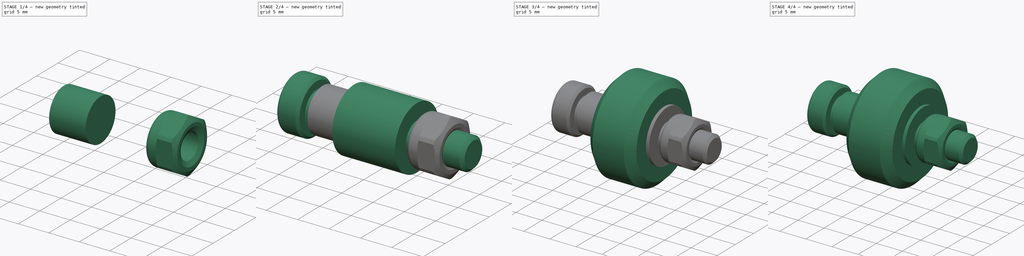
[diagram: build sequence overview — one tinted view per stage of 4, left to right]
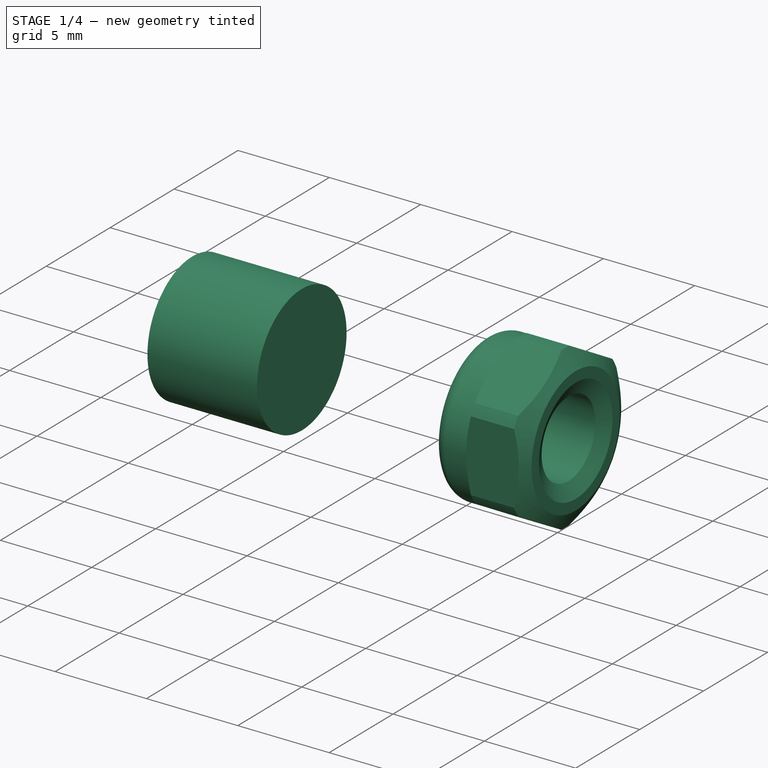
[diagram: stage 1 of 4 — iso view after this stage's code; geometry added in this stage tinted green]
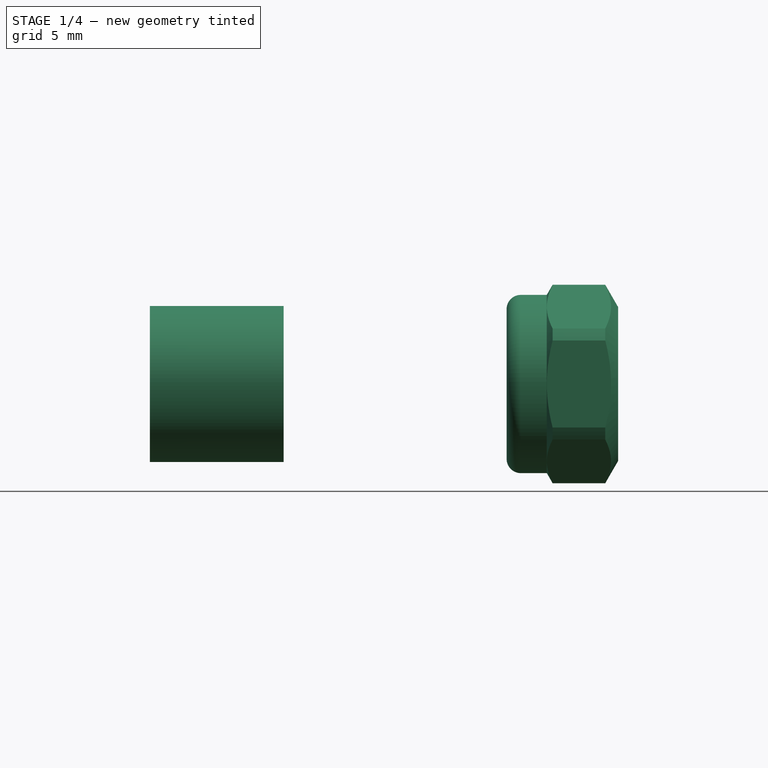
[diagram: stage 1 of 4 — front view after this stage's code; geometry added in this stage tinted green]
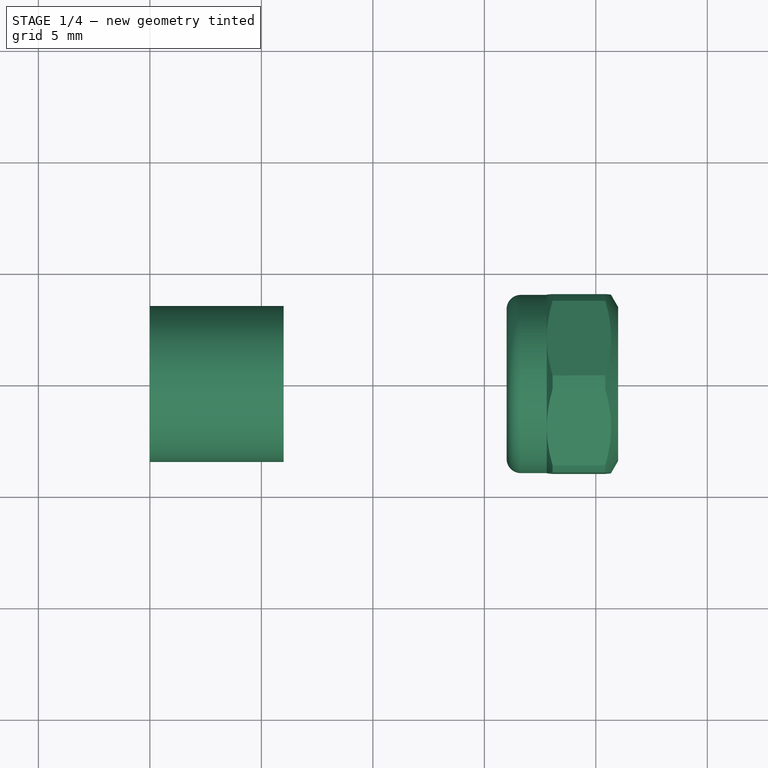
[diagram: stage 1 of 4 — top view after this stage's code; geometry added in this stage tinted green]
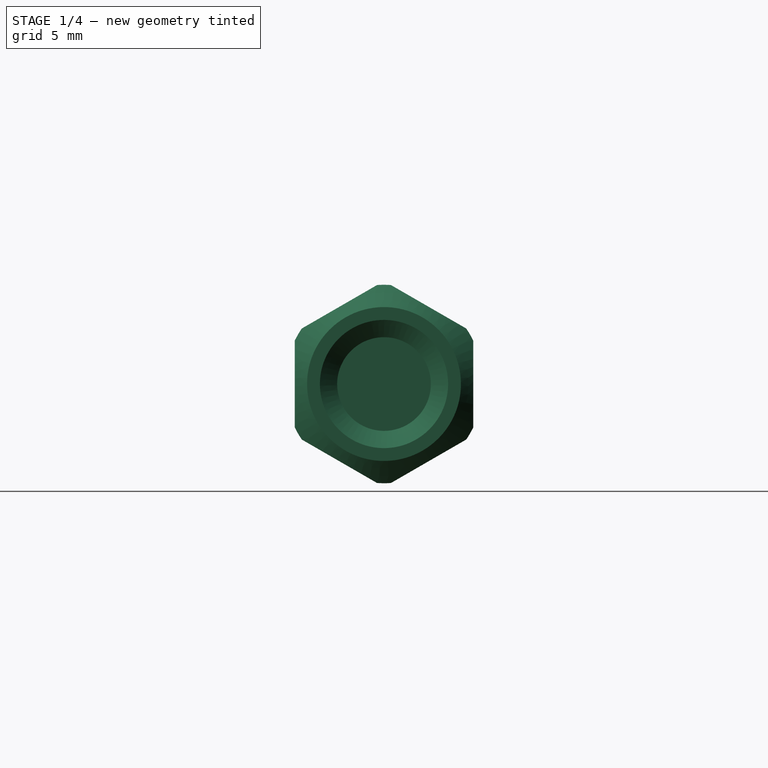
[diagram: stage 1 of 4 — right view after this stage's code; geometry added in this stage tinted green]
FCSTD DOCUMENT  (FreeCAD 0.19R)
Label: Rollen
License: All rights reserved
LicenseURL: http://en.wikipedia.org/wiki/All_rights_reserved
objects: Part::Cylinder×4, Part::Cut×2, Part::FeaturePython×2, Part::Feature×2, Sketcher::SketchObject×1, Part::Revolution×1, Part::MultiFuse×1, App::Part×1
note: 13 computed .brp shape members not serialized (recipe doc carries the construction recipe); baked Part::Feature solids carry a one-line shape summary decoded from their .brp

FEATURE [Part::Feature] Cut002  label="Tire"
  Placement = pos=(1,0,0) rot=(0,0,1;0rad)
  shape: bbox 8.8 x 18.03 x 18.03 mm, 6 faces (baked)
FEATURE [Part::Feature] Cut001001  label="Bearing"
  Placement = pos=(1,0,0) rot=(0,0,1;0rad)
  shape: bbox 10 x 10 x 10 mm, 4 faces (baked)
FEATURE [Part::Cylinder] Cylinder004  label="Spacer"
  Angle = 360
  AttacherType = Attacher::AttachEngine3D
  Height = 6
  Placement = pos=(-10,0,0) rot=(0,1,0;1.5708rad)
  Radius = 3.5
FEATURE [Part::FeaturePython] Nut  label="M5-Nut"  # Fasteners workbench fastener (typed FeaturePython)
  Placement = pos=(11,0,0) rot=(0,-1,0;1.5708rad)
  diameter = 3
  invert = false
  matchOuter = false
  offset = 0
  thread = false
  type = 5
FEATURE [App::Part] Part  label="Rollensatz_Aliexpress4000394459605"
  Group = -> [Screw001,Cut002,Cut001001,Cylinder004,Nut]
  Origin = -> Origin
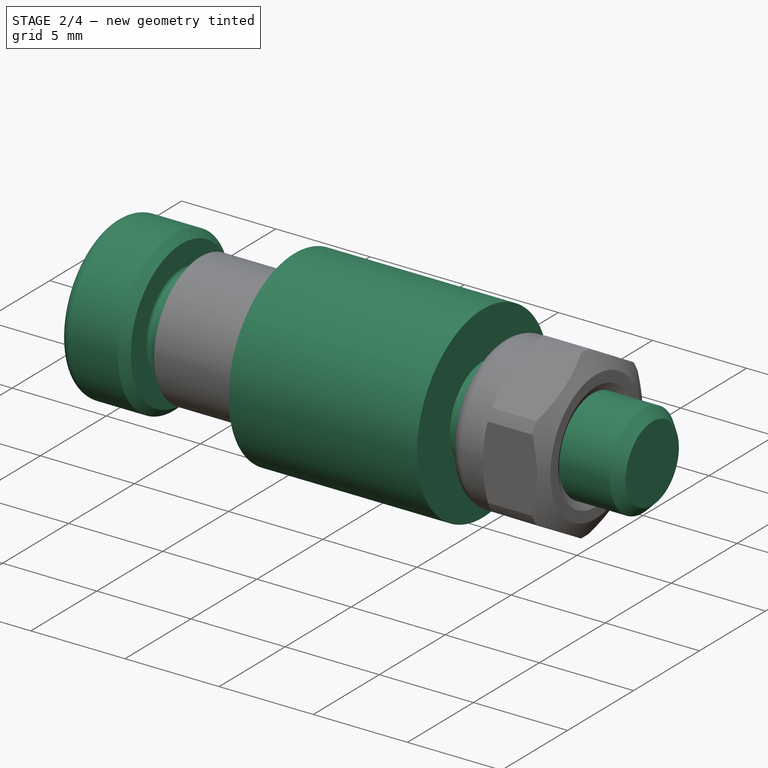
[diagram: stage 2 of 4 — iso view after this stage's code; geometry added in this stage tinted green]
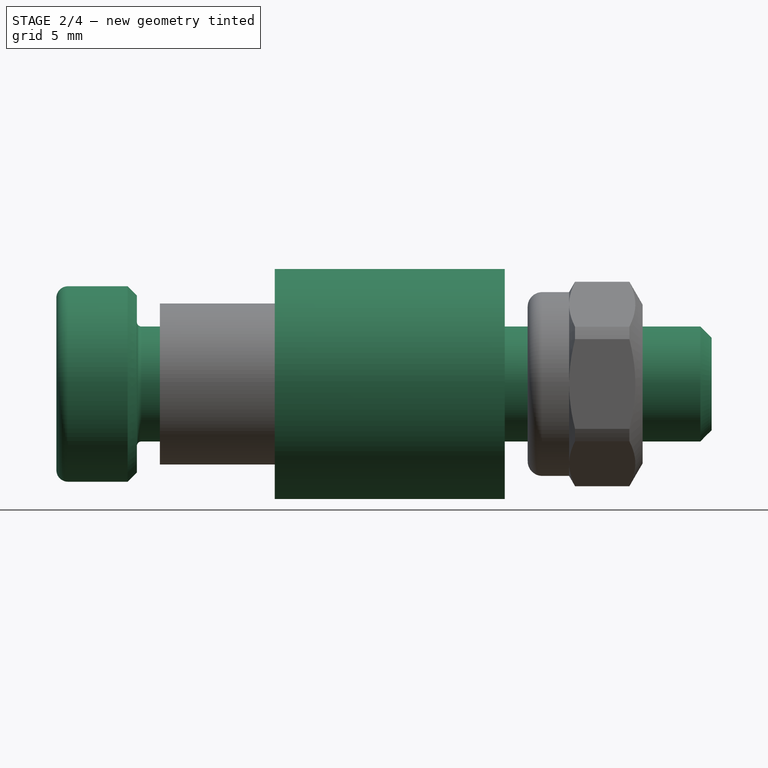
[diagram: stage 2 of 4 — front view after this stage's code; geometry added in this stage tinted green]
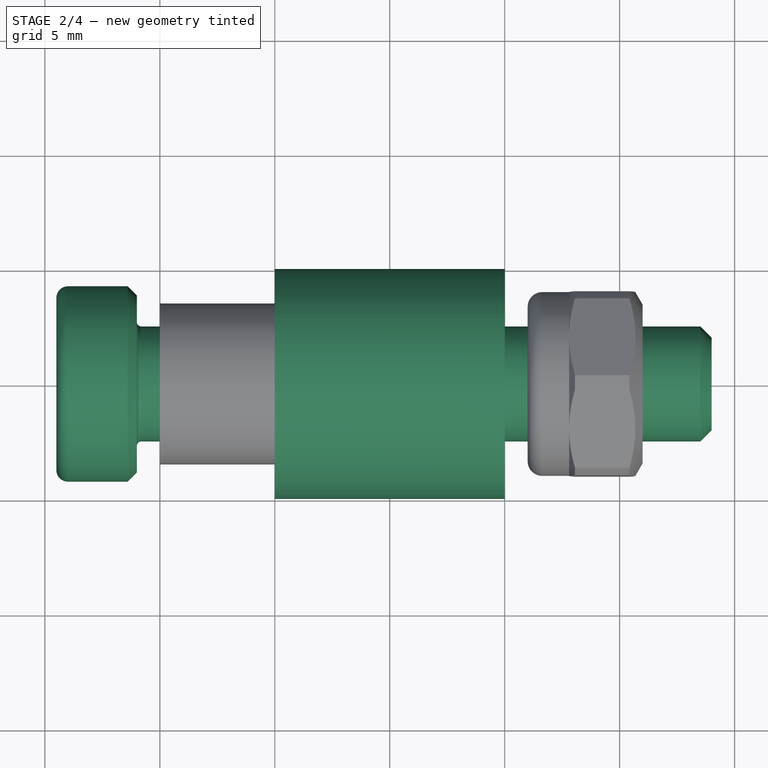
[diagram: stage 2 of 4 — top view after this stage's code; geometry added in this stage tinted green]
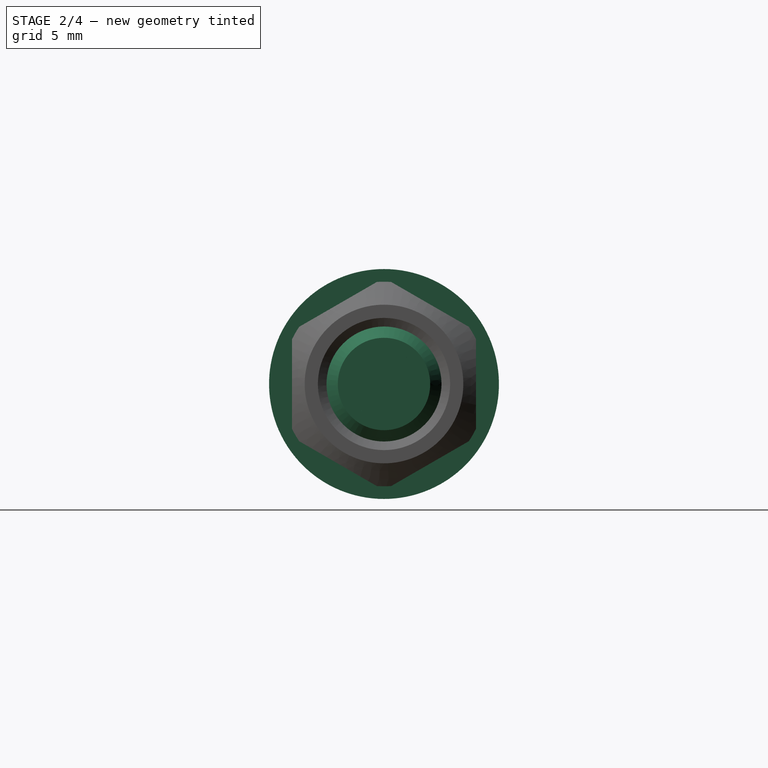
[diagram: stage 2 of 4 — right view after this stage's code; geometry added in this stage tinted green]
FEATURE [Part::Cylinder] Cylinder
  Angle = 360
  AttacherType = Attacher::AttachEngine3D
  Height = 10
  Placement = pos=(-5,0,0) rot=(0,1,0;1.5708rad)
  Radius = 5
FEATURE [Part::Cylinder] Cylinder003
  Angle = 360
  AttacherType = Attacher::AttachEngine3D
  Height = 10
  Placement = pos=(-5,0,0) rot=(0,1,0;1.5708rad)
  Radius = 2.5
FEATURE [Part::FeaturePython] Screw001  label="M5x25-Screw"  # Fasteners workbench fastener (typed FeaturePython)
  Placement = pos=(-11,0,0) rot=(0,-1,0;1.5708rad)
  diameter = 3
  invert = false
  length = 5
  lengthCustom = 25
  matchOuter = false
  offset = 1
  thread = false
  type = 12
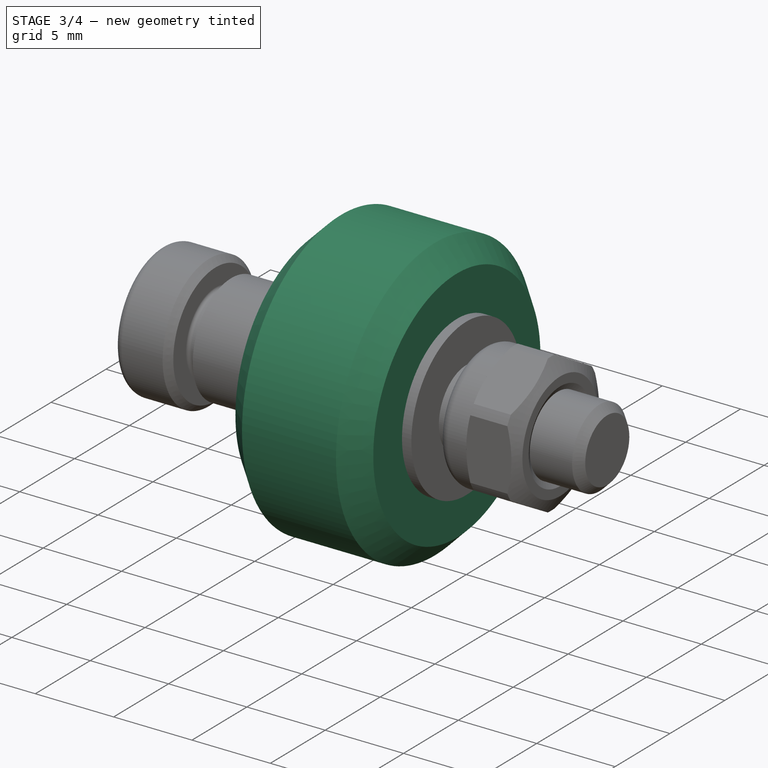
[diagram: stage 3 of 4 — iso view after this stage's code; geometry added in this stage tinted green]
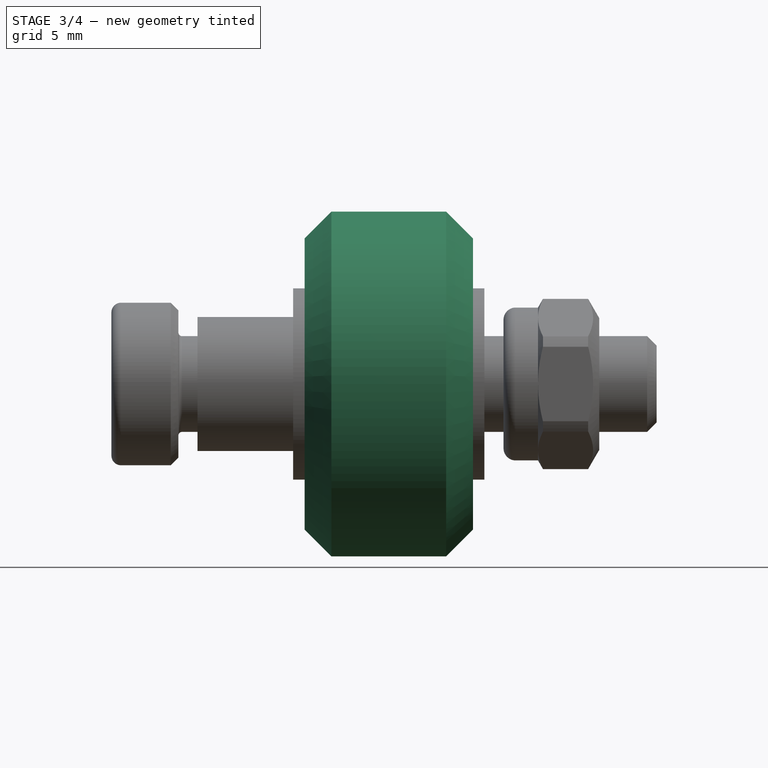
[diagram: stage 3 of 4 — front view after this stage's code; geometry added in this stage tinted green]
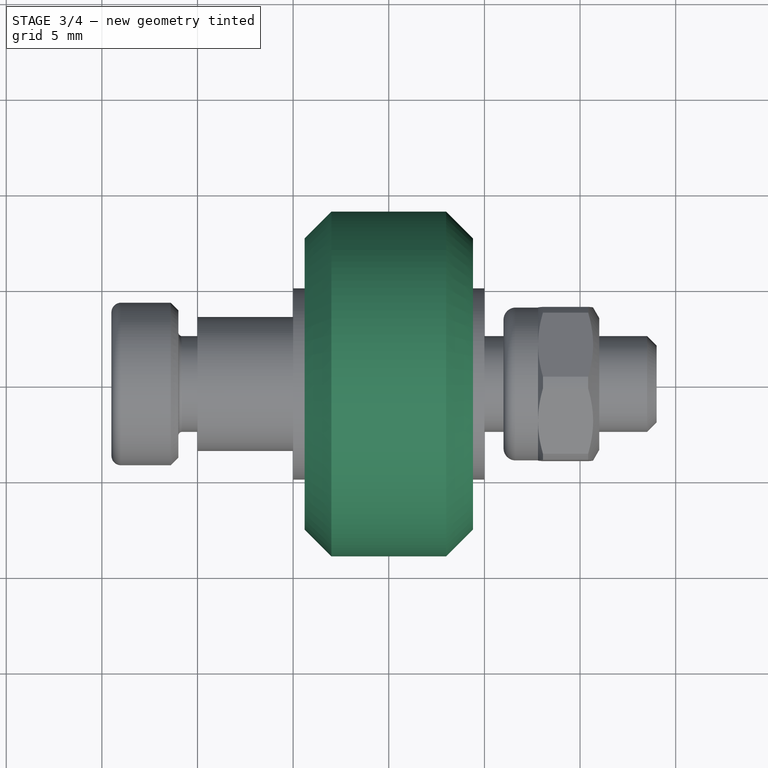
[diagram: stage 3 of 4 — top view after this stage's code; geometry added in this stage tinted green]
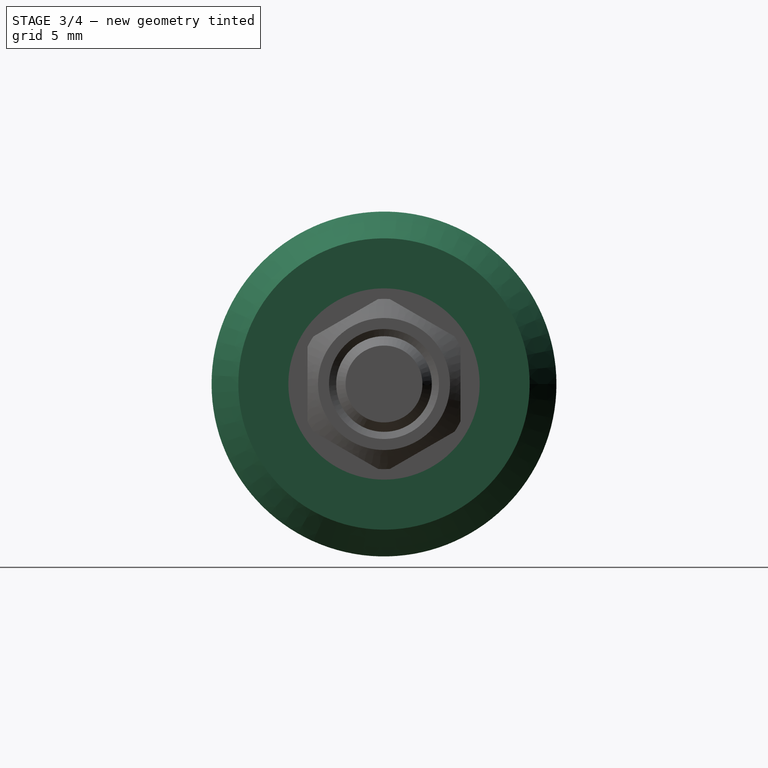
[diagram: stage 3 of 4 — right view after this stage's code; geometry added in this stage tinted green]
FEATURE [Sketcher::SketchObject] Sketch
  FullyConstrained = true
  sketch-geometry (7):
    g0: LineSegment StartX=-4.4 StartY=0 StartZ=0 EndX=-4.4 EndY=7.615 EndZ=0
    g1: LineSegment StartX=-4.4 StartY=7.615 StartZ=0 EndX=-3 EndY=9.015 EndZ=0
    g2: LineSegment StartX=-3 StartY=9.015 StartZ=0 EndX=3 EndY=9.015 EndZ=0
    g3: LineSegment StartX=3 StartY=9.015 StartZ=0 EndX=4.4 EndY=7.615 EndZ=0
    g4: LineSegment StartX=4.4 StartY=7.615 StartZ=0 EndX=4.4 EndY=0 EndZ=0
    g5: LineSegment StartX=-4.4 StartY=0 StartZ=0 EndX=0 EndY=0 EndZ=0
    g6: LineSegment StartX=0 StartY=0 StartZ=0 EndX=4.4 EndY=0 EndZ=0
  constraints (20):
    c: PointOnObject(g0,g-1)
    c: Vertical(g0)
    c: Coincident(g1,g0)
    c: Horizontal(g2)
    c: Coincident(g4,g3)
    c: PointOnObject(g4,g-1)
    c: Vertical(g4)
    c: Coincident(g1,g2)
    c: Coincident(g2,g3)
    c: Equal(g1,g3)
    c: Angle(g1,g3) = 1.5708
    c: Distance(g2) = 6
    c: Distance(g0,g3) = 8.8
    c: Equal(g0,g4)
    c: Coincident(g5,g0)
    c: Coincident(g5,g-1)
    c: Coincident(g6,g-1)
    c: Coincident(g6,g4)
    c: Equal(g5,g6)
    c: Distance(g4) = 7.615
FEATURE [Part::Revolution] Revolve
  Angle = 360
  Axis = (1,0,0)
  Base = (0,0,0)
  FaceMakerClass = Part::FaceMakerBullseye
  Solid = true
  Source = -> Sketch
  Symmetric = false
FEATURE [Part::Cylinder] Cylinder002
  Angle = 360
  AttacherType = Attacher::AttachEngine3D
  Height = 10
  Placement = pos=(-5,0,0) rot=(0,1,0;1.5708rad)
  Radius = 2.5
FEATURE [Part::Cut] Cut001
  Base = -> Cylinder
  Tool = -> Cylinder003
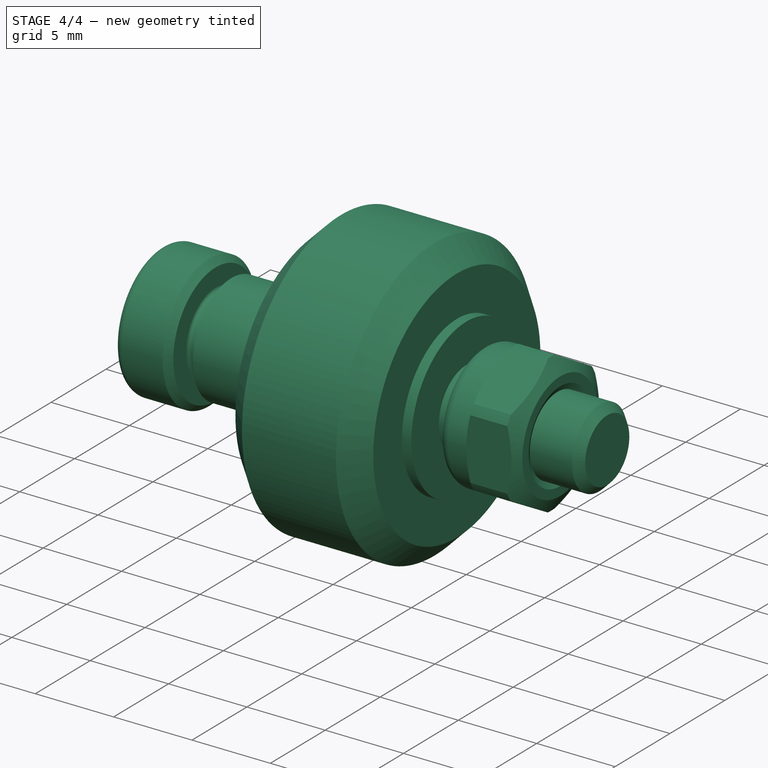
[diagram: stage 4 of 4 — iso view after this stage's code; geometry added in this stage tinted green]
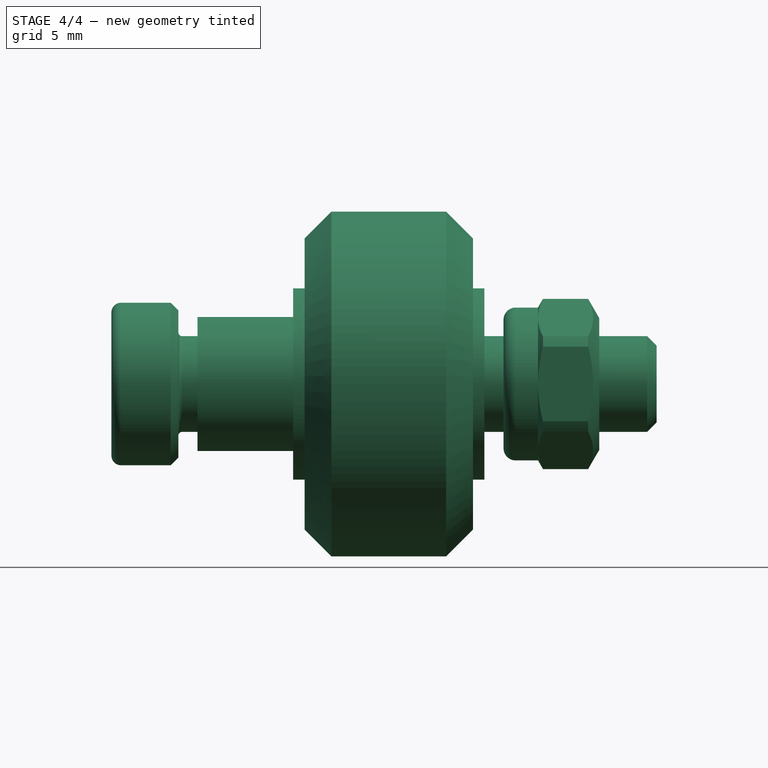
[diagram: stage 4 of 4 — front view after this stage's code; geometry added in this stage tinted green]
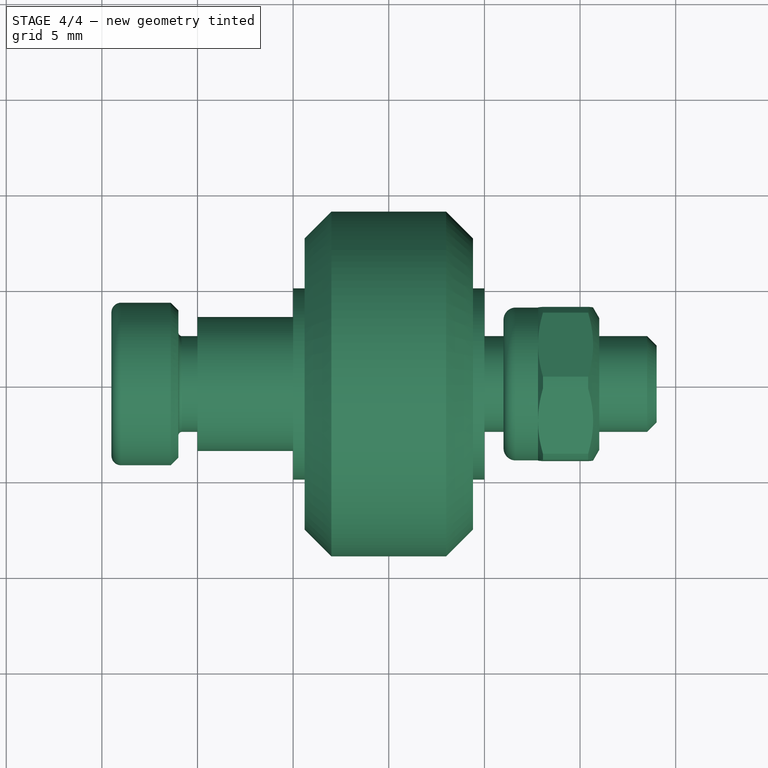
[diagram: stage 4 of 4 — top view after this stage's code; geometry added in this stage tinted green]
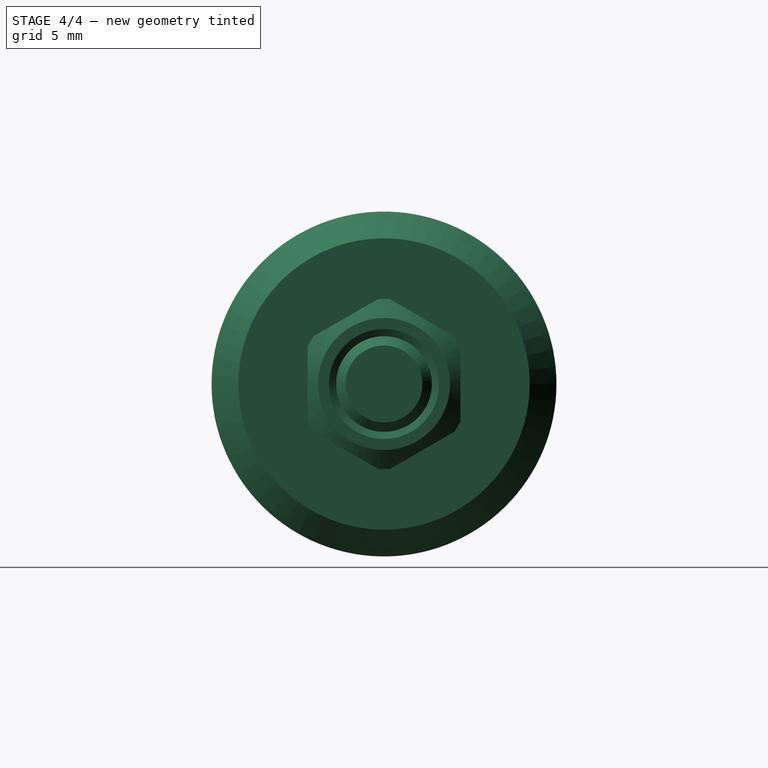
[diagram: stage 4 of 4 — right view after this stage's code; geometry added in this stage tinted green]
FEATURE [Part::Cut] Cut
  Base = -> Revolve
  Tool = -> Cylinder002
FEATURE [Part::MultiFuse] Fusion
  Shapes = -> [Cut,Cut001]
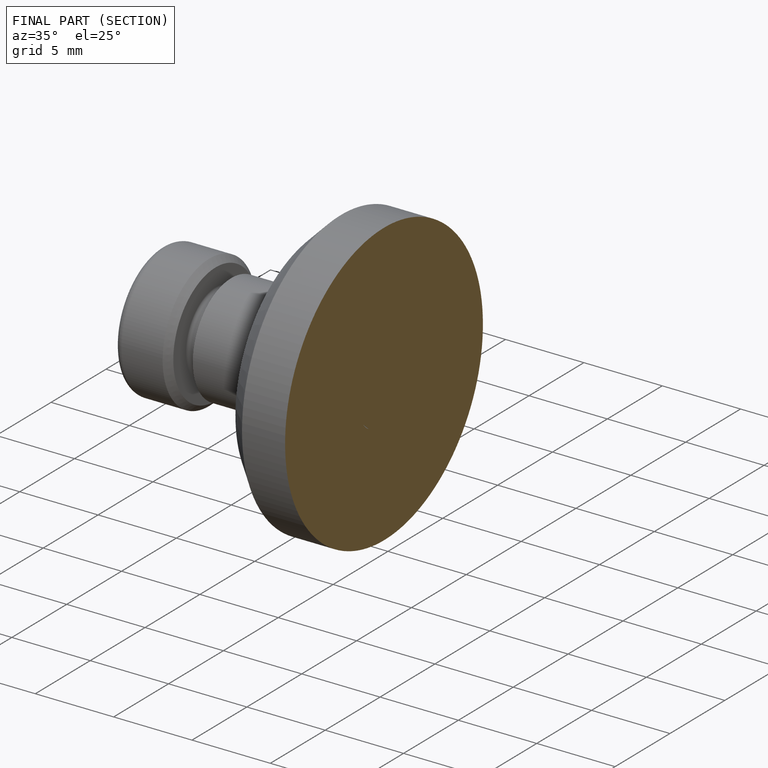
[diagram: finished part — half-section view (interior)]
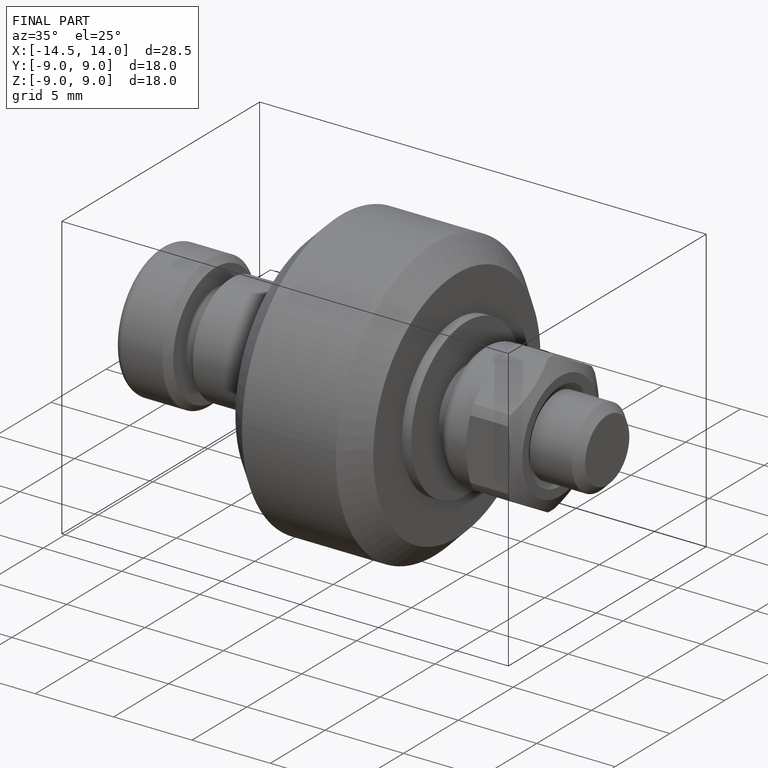
[diagram: finished part — iso view with bounding-box wireframe]
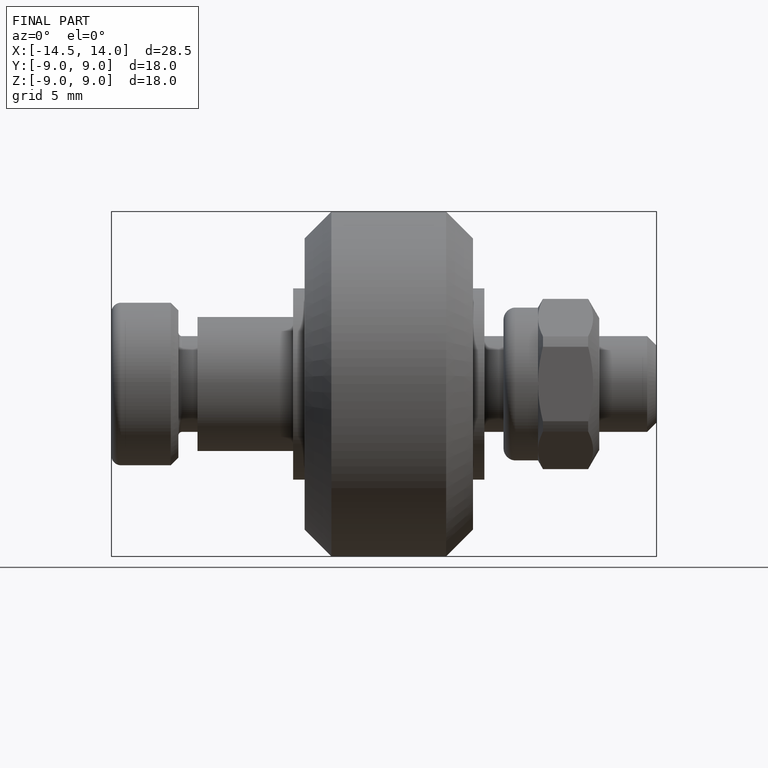
[diagram: finished part — front view with bounding-box wireframe]
